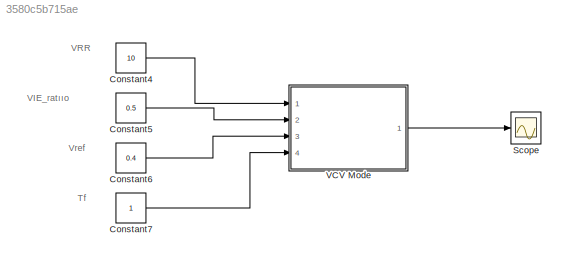
MODEL slx_3580c5b715ae
KIND model
CONFIG AbsTol = auto
CONFIG EnableMultiTasking = on
CONFIG FixedStep = 0.01
CONFIG MaxStep = auto
CONFIG MinStep = auto
CONFIG RelTol = 1e-3
CONFIG SampleTimeConstraint = Unconstrained
CONFIG Solver = ode1
CONFIG SolverName = ode1
CONFIG StartTime = 0.0
CONFIG StopTime = 60
BLOCK [Constant] Constant4
  Value = 10
BLOCK [Constant] Constant5
  Value = 0.5
BLOCK [Constant] Constant6
  Value = 0.4
BLOCK [Constant] Constant7
BLOCK [Scope] Scope
  Floating = off
  NumInputPorts = 1
  Ports = [1]
  ScopeSpecificationString = Simulink.scopes.TimeScopeBlockCfg('CurrentConfiguration', extmgr.ConfigurationSet(extmgr.Configuration('Core','General UI',true,'FigureColor',[1 1 1]),extmgr.Configuration('Core','Source UI',true),extmgr.Configuration('Sources','WiredSimulink',true,'DataLoggingVariableName','ScopeData1'),extmgr.Configuration('Visuals','Time Domain',true,'SerializedDisplays',{struct('MinYLimReal','-0.05','MaxYLimRe...<+1516ch>
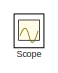
[diagram: VCV Mode - part 1/2, top right region]
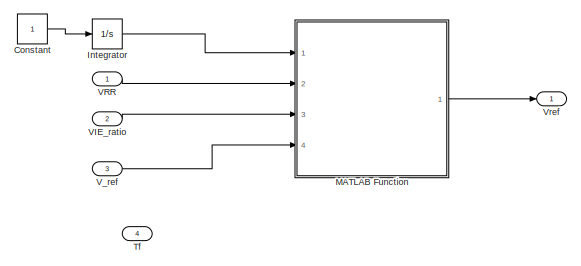
[diagram: VCV Mode - part 2/2, bottom left region]
BLOCK [SubSystem] VCV Mode
  Ports = [4, 1]
  RequestExecContextInheritance = off
BLOCK [Constant] VCV Mode/Constant
BLOCK [Integrator] VCV Mode/Integrator
  Ports = [1, 1]
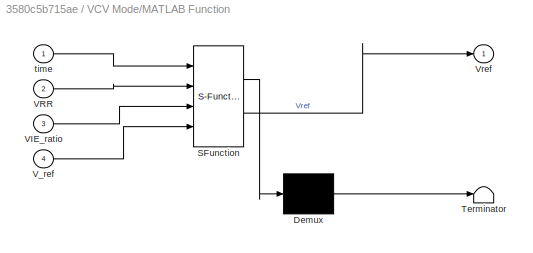
BLOCK [SubSystem] VCV Mode/MATLAB Function
  ErrorFcn = Stateflow.Translate.translate
  PermitHierarchicalResolution = ExplicitOnly
  Ports = [4, 1]
  RequestExecContextInheritance = off
  SFBlockType = MATLAB Function
  TreatAsAtomicUnit = on
BLOCK [Demux] VCV Mode/MATLAB Function/ Demux 
  DisplayOption = bar
  Outputs = 1
  Ports = [1, 1]
BLOCK [S-Function] VCV Mode/MATLAB Function/ SFunction 
  EnableBusSupport = on
  FunctionName = sf_sfun
  PortCounts = [4 2]
  Ports = [4, 2]
  SFcnIsStateOwnerBlock = off
  SFunctionDeploymentMode = off
  Tag = Stateflow S-Function Final_Q2_F 1
BLOCK [Terminator] VCV Mode/MATLAB Function/ Terminator 
BLOCK [Inport] VCV Mode/MATLAB Function/VIE_ratio
  IconDisplay = Port number
  Port = 3
BLOCK [Inport] VCV Mode/MATLAB Function/VRR
  IconDisplay = Port number
  Port = 2
BLOCK [Inport] VCV Mode/MATLAB Function/V_ref
  IconDisplay = Port number
  Port = 4
BLOCK [Outport] VCV Mode/MATLAB Function/Vref
  IconDisplay = Port number
  VectorParamsAs1DForOutWhenUnconnected = on
BLOCK [Inport] VCV Mode/MATLAB Function/time
  IconDisplay = Port number
BLOCK [Scope] VCV Mode/Scope
  Floating = off
  NumInputPorts = 3
  Ports = [3]
  ScopeSpecificationString = Simulink.scopes.TimeScopeBlockCfg('CurrentConfiguration', extmgr.ConfigurationSet(extmgr.Configuration('Core','General UI',true),extmgr.Configuration('Core','Source UI',true),extmgr.Configuration('Sources','WiredSimulink',true,'DataLoggingVariableName','ScopeData2'),extmgr.Configuration('Visuals','Time Domain',true,'SerializedDisplays',{struct('MinYLimReal','-0.78054','MaxYLimReal','7.02483','YLab...<+2804ch>
BLOCK [Inport] VCV Mode/Tf
  IconDisplay = Port number
  Port = 4
BLOCK [Inport] VCV Mode/VIE_ratio
  IconDisplay = Port number
  Port = 2
BLOCK [Inport] VCV Mode/VRR
  IconDisplay = Port number
BLOCK [Inport] VCV Mode/V_ref
  IconDisplay = Port number
  Port = 3
BLOCK [Outport] VCV Mode/Vref 
  IconDisplay = Port number
  VectorParamsAs1DForOutWhenUnconnected = on
ANNOTATION (root): Tf
ANNOTATION (root): VIE_ratııo
ANNOTATION (root): VRR
ANNOTATION (root): Vref
LINE Constant4:1 -> VCV Mode:1
LINE Constant5:1 -> VCV Mode:2
LINE Constant6:1 -> VCV Mode:3
LINE Constant7:1 -> VCV Mode:4
LINE VCV Mode/Constant:1 -> VCV Mode/Integrator:1
LINE VCV Mode/Integrator:1 -> VCV Mode/MATLAB Function:1
LINE VCV Mode/MATLAB Function:1 -> VCV Mode/Vref :1
LINE VCV Mode/VIE_ratio:1 -> VCV Mode/MATLAB Function:3
LINE VCV Mode/VRR:1 -> VCV Mode/MATLAB Function:2
LINE VCV Mode/V_ref:1 -> VCV Mode/MATLAB Function:4
LINE VCV Mode:1 -> Scope:1
CHART VCV Mode/MATLAB Function states=1 transitions=1
  STATE_LABEL 'eML_blk_kernel()'
  STATE_LABEL 'SCRIPT:\nfunction Vref = Vref_producer(time,VRR,VIE_ratio ,V_ref)\n\nstop_time = 60; % stop time is given as 60 seconds\n\n% Ti - Inspiratory Time (s)     Te - Expiratory Time (s)\n% VRR - Ventilator Respiratory Rate (breaths/min) is 10.\n% VIE_ratio ventilator inspiratory/expiratory rate is 0.5.\n% \n% There are 2 two equations.\n%\n%   60\n% ------ = Ti + Te     and     Ti = Te x VIE_ratio\n%   VRR\n% \n% in m...<+506ch>'
